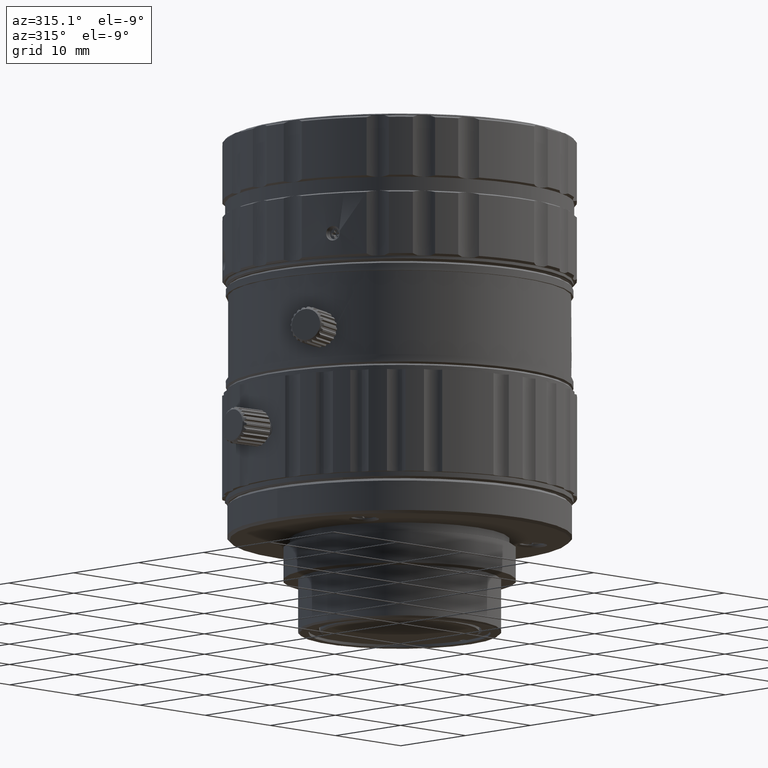
[diagram: clean part render]
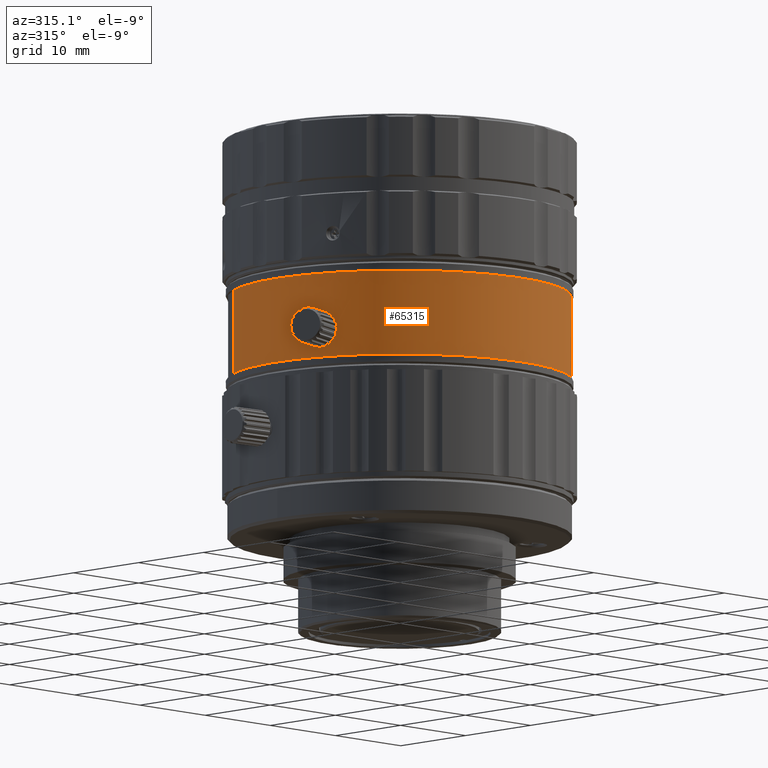
[diagram: same view with one face highlighted and labeled with its STEP entity id]
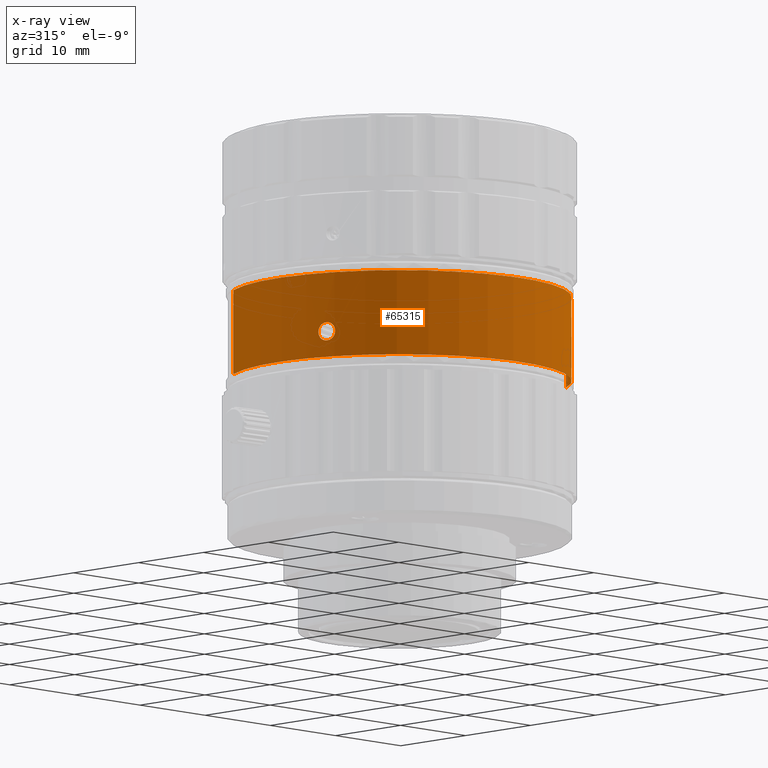
[diagram: x-ray of the same camera — body ghosted, the highlighted face saturated]
A machine part, auxiliary view. The second image highlights one B-rep face of the part: STEP entity #65315.
The next image is the same camera in x-ray: the body ghosted, the highlighted face saturated — about 0% of this face is hidden behind the body in this view.
In plain terms, the highlighted cylindrical surface (partial cylindrical patch) has radius 18.7 mm, axis along (0, 0, 1).
Its self-contained STEP definition (entity closure, byte-faithful):
#195 = VERTEX_POINT ( 'NONE', #25108 ) ;
#606 = CARTESIAN_POINT ( 'NONE',  ( -17.21618024574340211, -7.300005640051816513, 18.23421099973467108 ) ) ;
#628 = VERTEX_POINT ( 'NONE', #18775 ) ;
#872 = CARTESIAN_POINT ( 'NONE',  ( -17.20258043973591811, -7.332199515173570603, 18.50000656436566615 ) ) ;
#1294 = CARTESIAN_POINT ( 'NONE',  ( -17.28142690709346496, -7.144441216834127140, 17.88851125022605260 ) ) ;
#1579 = CARTESIAN_POINT ( 'NONE',  ( 13.94973725859865965, -12.45347931087509252, 19.33008300040383176 ) ) ;
#1937 = CARTESIAN_POINT ( 'NONE',  ( 13.90158552443185336, -12.50730711266013451, 19.27526118569986124 ) ) ;
#2150 = CARTESIAN_POINT ( 'NONE',  ( -17.89048265568584029, -5.442376417685388823, 18.55867254240463637 ) ) ;
#2277 = CARTESIAN_POINT ( 'NONE',  ( 13.78345472298498287, -12.63727895334794837, 17.91369211072118617 ) ) ;
#2360 = EDGE_CURVE ( 'NONE', #46749, #57878, #35588, .T. ) ;
#2576 = CARTESIAN_POINT ( 'NONE',  ( -17.33169939771410739, -7.021670955042416118, 19.24209169060820912 ) ) ;
#2952 = LINE ( 'NONE', #29784, #8270 ) ;
#2959 = CARTESIAN_POINT ( 'NONE',  ( 14.25302802408031333, -12.10593875614274140, 19.49967323390762175 ) ) ;
#3131 = EDGE_CURVE ( 'NONE', #11307, #19439, #58535, .T. ) ;
#3449 = CYLINDRICAL_SURFACE ( 'NONE', #4696, 18.69999999987999928 ) ;
#3508 = CARTESIAN_POINT ( 'NONE',  ( -17.83153099603091363, -5.632872432030306520, 19.11032323764769458 ) ) ;
#4294 = CARTESIAN_POINT ( 'NONE',  ( 14.69882443966237773, -11.55997259439689451, 17.68202999231140993 ) ) ;
#4531 = CARTESIAN_POINT ( 'NONE',  ( -17.65650320042198373, -6.160372549590998226, 17.51921500087838268 ) ) ;
#4696 = AXIS2_PLACEMENT_3D ( 'NONE', #24710, #67317, #19503 ) ;
#4941 = DIRECTION ( 'NONE',  ( 0.000000000000000000, 0.000000000000000000, -1.000000000000000000 ) ) ;
#4956 = CARTESIAN_POINT ( 'NONE',  ( 14.95089346455847412, -11.23210642667962844, 18.46406356350763645 ) ) ;
#5894 = B_SPLINE_CURVE_WITH_KNOTS ( 'NONE', 3,
 ( #30879, #62340, #53824, #52202, #16496, #6001, #57086, #41341, #45887, #46927, #25317, #67221, #21354, #61996, #25646, #56750, #36107 ),
 .UNSPECIFIED., .F., .F.,
 ( 4, 2, 2, 2, 1, 2, 2, 2, 4 ),
 ( 0.000000000000000000, 0.2499999999999829581, 0.3749999999999737432, 0.4374999999999683031, 0.4687499999999636957, 0.4843749999999628630, 0.4999999999999620304, 0.7499999999999810152, 1.000000000000000000 ),
 .UNSPECIFIED. ) ;
#6001 = CARTESIAN_POINT ( 'NONE',  ( 14.80067545063903367, -11.42969959159080595, 19.15262666019001969 ) ) ;
#6402 = VERTEX_POINT ( 'NONE', #8823 ) ;
#6536 = CARTESIAN_POINT ( 'NONE',  ( -17.38873514931079356, -6.878922574378370847, 17.63438794782238972 ) ) ;
#6809 = CARTESIAN_POINT ( 'NONE',  ( 13.65759335831792853, -12.77340265209540249, 18.51817221019041781 ) ) ;
#6876 = CARTESIAN_POINT ( 'NONE',  ( -17.34077700667790722, -6.999012187876029856, 17.72196069027455323 ) ) ;
#7114 = CARTESIAN_POINT ( 'NONE',  ( 14.58930526629772828, -11.69788433420257157, 17.58381923526305357 ) ) ;
#7155 = CARTESIAN_POINT ( 'NONE',  ( 13.71283992048618927, -12.71410054925594935, 18.89897795789893209 ) ) ;
#7485 = CARTESIAN_POINT ( 'NONE',  ( -17.26161803416259843, -7.193251090110858392, 19.01983714905340861 ) ) ;
#7516 = CARTESIAN_POINT ( 'NONE',  ( 13.82433625367956864, -12.59279441587124282, 19.16586012703539765 ) ) ;
#7728 = CARTESIAN_POINT ( 'NONE',  ( -17.88989359866500095, -5.444255887858869158, 18.58471377039095174 ) ) ;
#7814 = CARTESIAN_POINT ( 'NONE',  ( 14.57957170700743177, -11.71001185689683055, 17.57719476698483874 ) ) ;
#7849 = CARTESIAN_POINT ( 'NONE',  ( 14.00060256949767812, -12.39721806026792983, 17.61325777068859821 ) ) ;
#8024 = EDGE_CURVE ( 'NONE', #15169, #11307, #9319, .T. ) ;
#8062 = CARTESIAN_POINT ( 'NONE',  ( -17.80301050956076736, -5.721986680202819642, 19.21448378149023029 ) ) ;
#8157 = CARTESIAN_POINT ( 'NONE',  ( -17.34027388708133088, -7.000388286474245270, 19.26181014292524907 ) ) ;
#8270 = VECTOR ( 'NONE', #56340, 1000.000000000000000 ) ;
#8419 = CARTESIAN_POINT ( 'NONE',  ( -17.79655757271163807, -5.741997574537870186, 19.23482712435597364 ) ) ;
#8519 = CARTESIAN_POINT ( 'NONE',  ( -17.27451920729533796, -7.162160548372072277, 19.07307363181100968 ) ) ;
#8774 = CARTESIAN_POINT ( 'NONE',  ( -17.61282296824996507, -6.284183281311243263, 19.49902920717943999 ) ) ;
#8823 = CARTESIAN_POINT ( 'NONE',  ( 14.32410178647023891, -12.01872284573411953, 19.49565278202430108 ) ) ;
#8864 = CARTESIAN_POINT ( 'NONE',  ( -17.22146286821467243, -7.287756547011495556, 18.79014085798500489 ) ) ;
#9319 = B_SPLINE_CURVE_WITH_KNOTS ( 'NONE', 3,
 ( #43832, #27081, #49814, #53997, #17710, #54362, #65533, #33382, #6536, #32676, #6876, #11793, #48762, #1294, #65176, #22225, #48396, #22568, #38632, #606, #38974, #43484, #43149, #59945, #49451, #60284, #55038 ),
 .UNSPECIFIED., .F., .F.,
 ( 4, 2, 2, 2, 2, 2, 2, 2, 2, 2, 1, 2, 2, 4 ),
 ( 0.000000000000000000, 0.2173158677336297362, 0.2444803512003329571, 0.2716448346670360947, 0.3259738016004433692, 0.4346317354672624700, 0.4889607024006716873, 0.5432896693340810712, 0.6519476032008983957, 0.7062765701343076685, 0.7606055370677171634, 0.8149345040011264363, 0.8420989874678338483, 0.8692634709345413713 ),
 .UNSPECIFIED. ) ;
#9456 = CARTESIAN_POINT ( 'NONE',  ( -17.73623659744581005, -5.927359323427010551, 17.61268218970971233 ) ) ;
#9799 = CARTESIAN_POINT ( 'NONE',  ( -17.82672820336153663, -5.647337177201817049, 17.87219207963321921 ) ) ;
#10308 = EDGE_CURVE ( 'NONE', #19439, #54647, #15796, .T. ) ;
#11049 = ORIENTED_EDGE ( 'NONE', *, *, #27049, .F. ) ;
#11307 = VERTEX_POINT ( 'NONE', #872 ) ;
#11793 = CARTESIAN_POINT ( 'NONE',  ( -17.31083391931699822, -7.072740280059377938, 17.79829032725844229 ) ) ;
#12079 = CARTESIAN_POINT ( 'NONE',  ( 13.72721208571517160, -12.69868611711422624, 18.94539279878240023 ) ) ;
#12414 = CARTESIAN_POINT ( 'NONE',  ( 14.17251940514344888, -12.19978682101276846, 19.48376239922644615 ) ) ;
#12624 = CARTESIAN_POINT ( 'NONE',  ( -17.87567382617875467, -5.490451027454702704, 18.82586124641095893 ) ) ;
#12757 = CARTESIAN_POINT ( 'NONE',  ( 13.67846188756523240, -12.75112105289951892, 18.24911158568015423 ) ) ;
#12927 = FACE_BOUND ( 'NONE', #52270, .T. ) ;
#12982 = CARTESIAN_POINT ( 'NONE',  ( -17.76132639226500132, -5.849761673109686200, 19.32696480202264766 ) ) ;
#13434 = CARTESIAN_POINT ( 'NONE',  ( 13.80320942152259356, -12.61569397977743279, 17.87386151295515191 ) ) ;
#13643 = CARTESIAN_POINT ( 'NONE',  ( -17.78375116711476167, -5.781441813674049079, 19.27173674673117176 ) ) ;
#14104 = CARTESIAN_POINT ( 'NONE',  ( 14.93018196622602289, -11.25951288232038117, 18.23398154538917026 ) ) ;
#14679 = CARTESIAN_POINT ( 'NONE',  ( -17.88173891059589593, -5.471262272095454904, 18.24535604485443940 ) ) ;
#14848 = B_SPLINE_CURVE_WITH_KNOTS ( 'NONE', 3,
 ( #28985, #8774, #35247, #60774, #46033, #12982, #56218, #13643, #18193, #8419, #55869, #8062, #19207, #3508, #44691, #34887, #67378, #19566, #34224, #66016, #12624, #33868, #28656, #49962, #7728, #2150, #68768, #52008, #63508, #57920, #25127, #19909, #14679, #15693, #30689, #62150, #52343, #46734, #35911, #41846, #9799, #57239, #62823, #63179, #67734, #9456, #4531, #68069, #56901 ),
 .UNSPECIFIED., .F., .F.,
 ( 4, 2, 2, 2, 1, 2, 2, 2, 2, 2, 2, 2, 2, 1, 2, 2, 2, 2, 2, 2, 2, 1, 2, 2, 2, 4 ),
 ( 0.000000000000000000, 0.1250000000000131006, 0.1875000000000193456, 0.2187500000000232869, 0.2343750000000252576, 0.2421875000000246470, 0.2500000000000240363, 0.3125000000000060507, 0.3437499999999968359, 0.3593749999999922284, 0.3749999999999876765, 0.4374999999999727995, 0.4687499999999653055, 0.4843749999999630296, 0.4921874999999634737, 0.4999999999999639178, 0.5624999999999528155, 0.5937499999999471534, 0.6093749999999443778, 0.6249999999999416023, 0.6874999999999390488, 0.7187499999999393818, 0.7343749999999408251, 0.7499999999999422684, 0.8749999999999711342, 1.000000000000000000 ),
 .UNSPECIFIED. ) ;
#15169 = VERTEX_POINT ( 'NONE', #43570 ) ;
#15459 = CARTESIAN_POINT ( 'NONE',  ( 14.73190055390266018, -11.51780621423207762, 17.72209556279191744 ) ) ;
#15645 = ORIENTED_EDGE ( 'NONE', *, *, #40926, .T. ) ;
#15693 = CARTESIAN_POINT ( 'NONE',  ( -17.87745364388392844, -5.485202287556253609, 18.19579910986439941 ) ) ;
#15796 = B_SPLINE_CURVE_WITH_KNOTS ( 'NONE', 3,
 ( #55960, #8864, #66112, #7485, #8519, #50057, #40233, #18294, #2576, #8157, #44448, #29418, #24527, #39566, #60872, #34319, #29083 ),
 .UNSPECIFIED., .F., .F.,
 ( 4, 2, 2, 2, 1, 2, 2, 2, 4 ),
 ( 0.000000000000000000, 0.2499999999999764633, 0.3749999999999635847, 0.4374999999999575895, 0.4687499999999570899, 0.4843749999999557576, 0.4999999999999544809, 0.7499999999999772404, 1.000000000000000000 ),
 .UNSPECIFIED. ) ;
#16136 = CARTESIAN_POINT ( 'NONE',  ( 0.000000000000000000, 0.000000000000000000, 15.69999999999999929 ) ) ;
#16496 = CARTESIAN_POINT ( 'NONE',  ( 14.84022602739739938, -11.37860595068244329, 19.07212690718948522 ) ) ;
#17295 = CARTESIAN_POINT ( 'NONE',  ( 13.74214297906345728, -12.68259642925768738, 18.98961455003883003 ) ) ;
#17650 = CARTESIAN_POINT ( 'NONE',  ( 13.67320584157530661, -12.75676086482256899, 18.28203207466236435 ) ) ;
#17710 = CARTESIAN_POINT ( 'NONE',  ( -17.42533444972806222, -6.785723781515050845, 17.58374817238384935 ) ) ;
#17985 = CARTESIAN_POINT ( 'NONE',  ( 13.66096484717713722, -12.76986825998041830, 18.37904823358980622 ) ) ;
#18193 = CARTESIAN_POINT ( 'NONE',  ( -17.79025963367557495, -5.761462460288454324, 19.25383553399177572 ) ) ;
#18294 = CARTESIAN_POINT ( 'NONE',  ( -17.32370553395272950, -7.041449804942785384, 19.22200741129510249 ) ) ;
#18325 = CARTESIAN_POINT ( 'NONE',  ( 13.66731714942720544, -12.76285874724218239, 18.67387514849849950 ) ) ;
#18672 = CARTESIAN_POINT ( 'NONE',  ( 13.66373348465185167, -12.76673143323294113, 18.64051011808465930 ) ) ;
#18775 = CARTESIAN_POINT ( 'NONE',  ( -16.19467505066617008, 9.349999999938111372, 15.69999999999999929 ) ) ;
#18883 = CARTESIAN_POINT ( 'NONE',  ( -17.20632812267886180, -7.323428815042042572, 18.65946461506482024 ) ) ;
#19207 = CARTESIAN_POINT ( 'NONE',  ( -17.81892085992609509, -5.672450921200416829, 19.16175919383304205 ) ) ;
#19439 = VERTEX_POINT ( 'NONE', #63285 ) ;
#19503 = DIRECTION ( 'NONE',  ( -0.8660254037844969943, 0.4999999999998990252, 0.000000000000000000 ) ) ;
#19566 = CARTESIAN_POINT ( 'NONE',  ( -17.86160449135814687, -5.536778928577540171, 18.94108122614145273 ) ) ;
#19909 = CARTESIAN_POINT ( 'NONE',  ( -17.88402452317573221, -5.463796598092718781, 18.27810161522565124 ) ) ;
#20328 = DIRECTION ( 'NONE',  ( 0.8660254037844969943, -0.4999999999998990252, 0.000000000000000000 ) ) ;
#21208 = ORIENTED_EDGE ( 'NONE', *, *, #56294, .F. ) ;
#21354 = CARTESIAN_POINT ( 'NONE',  ( 14.65144929337680502, -11.62048673625431050, 19.36646276686014190 ) ) ;
#22225 = CARTESIAN_POINT ( 'NONE',  ( -17.25373904888560617, -7.211288725250026843, 17.99557213913774589 ) ) ;
#22568 = CARTESIAN_POINT ( 'NONE',  ( -17.22728474989646585, -7.274096188506995020, 18.14541094766948248 ) ) ;
#22863 = CARTESIAN_POINT ( 'NONE',  ( 13.86461171159582051, -12.54833760266186360, 19.22577050829847423 ) ) ;
#23547 = CARTESIAN_POINT ( 'NONE',  ( 13.84679574369458521, -12.56797005279415913, 17.80062125816906615 ) ) ;
#24219 = CARTESIAN_POINT ( 'NONE',  ( 13.88747748461931764, -12.52300735111462338, 19.25748427196615609 ) ) ;
#24261 = B_SPLINE_CURVE_WITH_KNOTS ( 'NONE', 3,
 ( #29596, #24699, #35513, #65947 ),
 .UNSPECIFIED., .F., .F.,
 ( 4, 4 ),
 ( 0.8691414569996045447, 1.000000000000000000 ),
 .UNSPECIFIED. ) ;
#24527 = CARTESIAN_POINT ( 'NONE',  ( -17.39094550934631656, -6.874288459321870270, 19.36907485991732258 ) ) ;
#24699 = CARTESIAN_POINT ( 'NONE',  ( 14.95121893154742132, -11.23172623288609628, 18.57978149439685467 ) ) ;
#24710 = CARTESIAN_POINT ( 'NONE',  ( 0.000000000000000000, 0.000000000000000000, -1.362500000000000044 ) ) ;
#25108 = CARTESIAN_POINT ( 'NONE',  ( -16.19467505066617008, 9.349999999938111372, 24.94999999999999929 ) ) ;
#25127 = CARTESIAN_POINT ( 'NONE',  ( -17.88935944156142099, -5.446308633285176448, 18.37481818233425557 ) ) ;
#25236 = B_SPLINE_CURVE_WITH_KNOTS ( 'NONE', 3,
 ( #65464, #2959, #12414, #55989, #38915, #1579, #59879, #1937, #24219, #44132, #22863, #65105, #7516, #28779, #39247, #17295, #12079, #38564, #7155, #60545, #54636, #18325, #18672, #50085, #44479, #33319, #6809, #55663, #28066, #17985, #17650, #12757, #29112, #34012, #55336, #49381, #60218, #49749, #2277, #13434, #39936, #33652, #23547, #54973, #7849, #28428, #65808, #44817 ),
 .UNSPECIFIED., .F., .F.,
 ( 4, 2, 2, 2, 1, 2, 2, 2, 1, 2, 2, 2, 2, 1, 2, 2, 2, 2, 2, 2, 2, 1, 2, 2, 2, 4 ),
 ( 0.000000000000000000, 0.1249999999999555356, 0.1874999999999333589, 0.2187499999999230060, 0.2343749999999173161, 0.2421874999999158451, 0.2499999999999144018, 0.3124999999999055200, 0.3437499999999011346, 0.3593749999998971933, 0.3749999999998932521, 0.4374999999998817612, 0.4687499999998760436, 0.4843749999998747113, 0.4921874999998755440, 0.4999999999998764322, 0.5624999999998868683, 0.5937499999998937517, 0.6093749999998971933, 0.6249999999999005240, 0.6874999999999137357, 0.7187499999999213962, 0.7343749999999242828, 0.7499999999999271694, 0.8749999999999635847, 1.000000000000000000 ),
 .UNSPECIFIED. ) ;
#25317 = CARTESIAN_POINT ( 'NONE',  ( 14.72503292751265214, -11.52664580823147134, 19.27214384460571495 ) ) ;
#25550 = CARTESIAN_POINT ( 'NONE',  ( 14.93953724406906680, -11.24707373911368613, 18.29499972211083758 ) ) ;
#25646 = CARTESIAN_POINT ( 'NONE',  ( 14.44877473738139706, -11.87131018373070823, 19.48735854437630621 ) ) ;
#25880 = CARTESIAN_POINT ( 'NONE',  ( 14.82803668963248711, -11.39386164439112115, 17.88834372317821320 ) ) ;
#26229 = CARTESIAN_POINT ( 'NONE',  ( 14.94977384927060626, -11.23357059190487739, 18.42903702022752910 ) ) ;
#26697 = EDGE_LOOP ( 'NONE', ( #33949, #41897, #56803, #56007 ) ) ;
#27049 = EDGE_CURVE ( 'NONE', #628, #195, #2952, .T. ) ;
#27081 = CARTESIAN_POINT ( 'NONE',  ( -17.52859458948584148, -6.515720673957077658, 17.49995763641592816 ) ) ;
#28066 = CARTESIAN_POINT ( 'NONE',  ( 13.65750647852148347, -12.77352443868452880, 18.44135420674161097 ) ) ;
#28241 = EDGE_LOOP ( 'NONE', ( #48734, #63393, #15645, #11049 ) ) ;
#28428 = CARTESIAN_POINT ( 'NONE',  ( 14.16285772670684828, -12.21130105222678708, 17.51932123263043906 ) ) ;
#28656 = CARTESIAN_POINT ( 'NONE',  ( -17.88684031468354618, -5.454078957331688571, 18.66934496812966415 ) ) ;
#28732 = VERTEX_POINT ( 'NONE', #33416 ) ;
#28779 = CARTESIAN_POINT ( 'NONE',  ( 13.79611775287484399, -12.62378877293397927, 19.11452699952238277 ) ) ;
#28985 = CARTESIAN_POINT ( 'NONE',  ( -17.57291161025439763, -6.390302094711049818, 19.49649699213905052 ) ) ;
#29078 = CARTESIAN_POINT ( 'NONE',  ( 14.60856518377918789, -11.67382418960554702, 17.59793133761997552 ) ) ;
#29083 = CARTESIAN_POINT ( 'NONE',  ( -17.57291161025439763, -6.390302094711049818, 19.49649699213905052 ) ) ;
#29112 = CARTESIAN_POINT ( 'NONE',  ( 13.68833225203968773, -12.74050378284441365, 18.19918938467710845 ) ) ;
#29418 = CARTESIAN_POINT ( 'NONE',  ( -17.34974170696701279, -6.976854923313479340, 19.28264869709783724 ) ) ;
#29596 = CARTESIAN_POINT ( 'NONE',  ( 14.95127239138058250, -11.23162415614595666, 18.49982052188108028 ) ) ;
#29784 = CARTESIAN_POINT ( 'NONE',  ( -16.19467505066617008, 9.349999999938111372, -1.362500000000000044 ) ) ;
#30093 = CARTESIAN_POINT ( 'NONE',  ( 14.79685063549611890, -11.43427798853938171, 17.82640329326855166 ) ) ;
#30689 = CARTESIAN_POINT ( 'NONE',  ( -17.87588248085492282, -5.490305675747790382, 18.17920776152222828 ) ) ;
#30879 = CARTESIAN_POINT ( 'NONE',  ( 14.92721324523762050, -11.25552298889276059, 18.73535018309759792 ) ) ;
#31100 = DIRECTION ( 'NONE',  ( -0.8660254037844969943, 0.4999999999998990252, 0.000000000000000000 ) ) ;
#31676 = CIRCLE ( 'NONE', #68559, 18.69999999987999928 ) ;
#32484 = ORIENTED_EDGE ( 'NONE', *, *, #67045, .F. ) ;
#32676 = CARTESIAN_POINT ( 'NONE',  ( -17.36076122620137596, -6.949268617896476208, 17.68188462823359330 ) ) ;
#33319 = CARTESIAN_POINT ( 'NONE',  ( 13.65791780208776274, -12.77304536800249402, 18.53607788276723767 ) ) ;
#33382 = CARTESIAN_POINT ( 'NONE',  ( -17.39773600773270346, -6.856160236506359418, 17.62064804123892969 ) ) ;
#33416 = CARTESIAN_POINT ( 'NONE',  ( 14.32667378956639936, -12.01910163234891904, 17.50420532525925310 ) ) ;
#33618 = CARTESIAN_POINT ( 'NONE',  ( 14.40712221196829468, -11.92229369597638389, 17.50020501561908759 ) ) ;
#33652 = CARTESIAN_POINT ( 'NONE',  ( 13.83971215553893508, -12.57573074305583027, 17.81179570441303639 ) ) ;
#33868 = CARTESIAN_POINT ( 'NONE',  ( -17.88110089631214805, -5.472711169126751152, 18.76589241150289666 ) ) ;
#33949 = ORIENTED_EDGE ( 'NONE', *, *, #8024, .F. ) ;
#34012 = CARTESIAN_POINT ( 'NONE',  ( 13.69195329328586830, -12.73660524705575092, 18.18245921096199069 ) ) ;
#34169 = FACE_BOUND ( 'NONE', #26697, .T. ) ;
#34224 = CARTESIAN_POINT ( 'NONE',  ( -17.86562340522105430, -5.523665624523456330, 18.91126739066037388 ) ) ;
#34228 = DIRECTION ( 'NONE',  ( 0.000000000000000000, 0.000000000000000000, 1.000000000000000000 ) ) ;
#34319 = CARTESIAN_POINT ( 'NONE',  ( -17.54337978067072612, -6.475197181132621438, 19.50066833016254009 ) ) ;
#34887 = CARTESIAN_POINT ( 'NONE',  ( -17.85273206498568754, -5.565445205138889406, 18.99948811917825608 ) ) ;
#35247 = CARTESIAN_POINT ( 'NONE',  ( -17.65358735086043396, -6.168143237672910395, 19.48240800954000917 ) ) ;
#35334 = CARTESIAN_POINT ( 'NONE',  ( 14.95118823487048942, -11.23172586055607525, 18.48322412144408489 ) ) ;
#35513 = CARTESIAN_POINT ( 'NONE',  ( 14.94553802335886417, -11.23927188538905142, 18.65937655974832765 ) ) ;
#35588 = LINE ( 'NONE', #60777, #41620 ) ;
#35704 = CARTESIAN_POINT ( 'NONE',  ( 16.19467505066616653, -9.349999999938113149, 24.94999999999999929 ) ) ;
#35911 = CARTESIAN_POINT ( 'NONE',  ( -17.85193605456452204, -5.567435305826869296, 17.99383789622703489 ) ) ;
#36107 = CARTESIAN_POINT ( 'NONE',  ( 14.32410178647023891, -12.01872284573411953, 19.49565278202430108 ) ) ;
#37709 = EDGE_CURVE ( 'NONE', #54647, #15169, #14848, .T. ) ;
#38564 = CARTESIAN_POINT ( 'NONE',  ( 13.71774846283874716, -12.70885019298621543, 18.91557363863497798 ) ) ;
#38632 = CARTESIAN_POINT ( 'NONE',  ( -17.22311921338795671, -7.283779587429881630, 18.17565548963767341 ) ) ;
#38915 = CARTESIAN_POINT ( 'NONE',  ( 14.00932962022590367, -12.38636529872400693, 19.38646482658869985 ) ) ;
#38964 = CARTESIAN_POINT ( 'NONE',  ( -17.57291161025439763, -6.390302094711049818, 19.49649699213905052 ) ) ;
#38974 = CARTESIAN_POINT ( 'NONE',  ( -17.21008609395010680, -7.314325187506250714, 18.29526377090239109 ) ) ;
#39247 = CARTESIAN_POINT ( 'NONE',  ( 13.75923004491716917, -12.66403271611325643, 19.03214625422576134 ) ) ;
#39566 = CARTESIAN_POINT ( 'NONE',  ( -17.43148734126486588, -6.770352610435851126, 19.42312807614934300 ) ) ;
#39936 = CARTESIAN_POINT ( 'NONE',  ( 13.82486750581101909, -12.59198737034847326, 17.83630120673478459 ) ) ;
#40233 = CARTESIAN_POINT ( 'NONE',  ( -17.30846431224320625, -7.079078591245725249, 19.18158421090587140 ) ) ;
#40918 = CARTESIAN_POINT ( 'NONE',  ( 14.83888637924831500, -11.37973318647984300, 17.91305041690547384 ) ) ;
#40926 = EDGE_CURVE ( 'NONE', #57878, #195, #31676, .T. ) ;
#41339 = CIRCLE ( 'NONE', #60324, 18.69999999987999928 ) ;
#41341 = CARTESIAN_POINT ( 'NONE',  ( 14.76137860964781012, -11.48017328804278314, 19.21972801677118170 ) ) ;
#41578 = CARTESIAN_POINT ( 'NONE',  ( 14.87212033008276002, -11.33641135832624869, 17.99542264933452529 ) ) ;
#41620 = VECTOR ( 'NONE', #34228, 1000.000000000000000 ) ;
#41846 = CARTESIAN_POINT ( 'NONE',  ( -17.83555158821693354, -5.619420466922991686, 17.91186163032438117 ) ) ;
#41897 = ORIENTED_EDGE ( 'NONE', *, *, #37709, .F. ) ;
#42770 = VERTEX_POINT ( 'NONE', #60291 ) ;
#43149 = CARTESIAN_POINT ( 'NONE',  ( -17.20404154643343375, -7.328673296688236860, 18.41201778304317571 ) ) ;
#43484 = CARTESIAN_POINT ( 'NONE',  ( -17.20609081596095535, -7.323795076822412042, 18.36105911759434051 ) ) ;
#43570 = CARTESIAN_POINT ( 'NONE',  ( -17.57256014270640065, -6.396636949474480360, 17.50408626825250025 ) ) ;
#43832 = CARTESIAN_POINT ( 'NONE',  ( -17.57256014270640065, -6.396636949474480360, 17.50408626825250025 ) ) ;
#44132 = CARTESIAN_POINT ( 'NONE',  ( 13.87370881036664727, -12.53826851898957884, 19.23860267206064378 ) ) ;
#44245 = EDGE_CURVE ( 'NONE', #50020, #42770, #24261, .T. ) ;
#44448 = CARTESIAN_POINT ( 'NONE',  ( -17.34612108175149459, -6.985860592658005963, 19.27485342042654892 ) ) ;
#44479 = CARTESIAN_POINT ( 'NONE',  ( 13.65864270113081957, -12.77225211339426281, 18.56277003215239318 ) ) ;
#44691 = CARTESIAN_POINT ( 'NONE',  ( -17.84776605190508292, -5.581326565927660077, 19.02785878574306722 ) ) ;
#44817 = CARTESIAN_POINT ( 'NONE',  ( 14.32667378956639936, -12.01910163234891904, 17.50420532525925310 ) ) ;
#45379 = CARTESIAN_POINT ( 'NONE',  ( -17.20258043973591811, -7.332199515173570603, 18.50000656436566615 ) ) ;
#45887 = CARTESIAN_POINT ( 'NONE',  ( 14.74844963274394338, -11.49673151866384657, 19.23964049797059772 ) ) ;
#46033 = CARTESIAN_POINT ( 'NONE',  ( -17.73314372419067553, -5.934568746195666655, 19.38382312961426024 ) ) ;
#46133 = CARTESIAN_POINT ( 'NONE',  ( 14.91960345423895262, -11.27362961328468849, 18.17547762084541318 ) ) ;
#46734 = CARTESIAN_POINT ( 'NONE',  ( -17.86117157796830668, -5.537922661713817973, 18.05201149347990253 ) ) ;
#46749 = VERTEX_POINT ( 'NONE', #68709 ) ;
#46826 = CARTESIAN_POINT ( 'NONE',  ( 14.94894857443264158, -11.23465416798442540, 18.41177488291684483 ) ) ;
#46927 = CARTESIAN_POINT ( 'NONE',  ( 14.73453329078333240, -11.51451438798342508, 19.25920151677567205 ) ) ;
#48396 = CARTESIAN_POINT ( 'NONE',  ( -17.24182197071320033, -7.239800145334369219, 18.05406161926998720 ) ) ;
#48734 = ORIENTED_EDGE ( 'NONE', *, *, #63709, .T. ) ;
#48762 = CARTESIAN_POINT ( 'NONE',  ( -17.30086814116067728, -7.097143835735170825, 17.82642856843787982 ) ) ;
#49381 = CARTESIAN_POINT ( 'NONE',  ( 13.70467298405546153, -12.72289314368009983, 18.13037407639992793 ) ) ;
#49451 = CARTESIAN_POINT ( 'NONE',  ( -17.20280879032278065, -7.331629146492165461, 18.46427748585614026 ) ) ;
#49558 = ORIENTED_EDGE ( 'NONE', *, *, #44245, .F. ) ;
#49749 = CARTESIAN_POINT ( 'NONE',  ( 13.74666452578507325, -12.67741523345189414, 17.99599259431487397 ) ) ;
#49814 = CARTESIAN_POINT ( 'NONE',  ( -17.48191488538721217, -6.639727369213662911, 17.52129768984648450 ) ) ;
#49962 = CARTESIAN_POINT ( 'NONE',  ( -17.88835220249645275, -5.449200970124226551, 18.63607290997360977 ) ) ;
#50020 = VERTEX_POINT ( 'NONE', #67929 ) ;
#50057 = CARTESIAN_POINT ( 'NONE',  ( -17.29930005073941146, -7.101589219116898555, 19.15430280312707367 ) ) ;
#50085 = CARTESIAN_POINT ( 'NONE',  ( 13.66005648428652464, -12.77071602879091827, 18.58893689668444793 ) ) ;
#50114 = B_SPLINE_CURVE_WITH_KNOTS ( 'NONE', 3,
 ( #60181, #33618, #54937, #7814, #7114, #29078, #62579, #56993, #52101, #4294, #15459, #58008, #30093, #25880, #40918, #41578, #61891, #68506, #46133, #14104, #25550, #63269, #46826, #26229, #4956, #35334, #57685 ),
 .UNSPECIFIED., .F., .F.,
 ( 4, 2, 2, 2, 2, 2, 2, 2, 2, 2, 1, 2, 2, 4 ),
 ( 0.000000000000000000, 0.2172853642499054660, 0.2444460347811431289, 0.2716067053123807362, 0.3259280463748540635, 0.4345707284998022724, 0.4888920695622768764, 0.5432134106247514804, 0.6518560927497006885, 0.7061774338121753480, 0.7604987748746498966, 0.8148201159371246671, 0.8419807864683646059, 0.8691414569996045447 ),
 .UNSPECIFIED. ) ;
#50985 = CARTESIAN_POINT ( 'NONE',  ( -17.21120089494785077, -7.299547928036129285, 18.73534067560354899 ) ) ;
#51251 = FACE_OUTER_BOUND ( 'NONE', #28241, .T. ) ;
#52008 = CARTESIAN_POINT ( 'NONE',  ( -17.89090294540407200, -5.441064463985748390, 18.51433629916478907 ) ) ;
#52101 = CARTESIAN_POINT ( 'NONE',  ( 14.65184081636245139, -11.61943479951835378, 17.63450688573315617 ) ) ;
#52202 = CARTESIAN_POINT ( 'NONE',  ( 14.86050162129238750, -11.35214583870433103, 19.01934753601842587 ) ) ;
#52270 = EDGE_LOOP ( 'NONE', ( #53599, #32484, #21208, #49558 ) ) ;
#52343 = CARTESIAN_POINT ( 'NONE',  ( -17.87038133014191033, -5.508136346346966583, 18.12773309491609908 ) ) ;
#52438 = DIRECTION ( 'NONE',  ( 0.000000000000000000, 0.000000000000000000, 1.000000000000000000 ) ) ;
#52756 = CARTESIAN_POINT ( 'NONE',  ( 0.000000000000000000, 0.000000000000000000, 24.94999999999999929 ) ) ;
#53599 = ORIENTED_EDGE ( 'NONE', *, *, #54216, .F. ) ;
#53824 = CARTESIAN_POINT ( 'NONE',  ( 14.90791073759339547, -11.28979629842065258, 18.87251925262741281 ) ) ;
#53997 = CARTESIAN_POINT ( 'NONE',  ( -17.43097189620504039, -6.771226652545353275, 17.57711206191029873 ) ) ;
#54216 = EDGE_CURVE ( 'NONE', #28732, #50020, #50114, .T. ) ;
#54362 = CARTESIAN_POINT ( 'NONE',  ( -17.41412434507408591, -6.814442062517947818, 17.59788461088867351 ) ) ;
#54636 = CARTESIAN_POINT ( 'NONE',  ( 13.68091610659871016, -12.74821187439208536, 18.77055635783766974 ) ) ;
#54647 = VERTEX_POINT ( 'NONE', #38964 ) ;
#54937 = CARTESIAN_POINT ( 'NONE',  ( 14.49118181840269948, -11.81985452074372134, 17.52148147047986626 ) ) ;
#54973 = CARTESIAN_POINT ( 'NONE',  ( 13.92204839736842814, -12.48548850126470100, 17.68799488242003903 ) ) ;
#55038 = CARTESIAN_POINT ( 'NONE',  ( -17.20258043973591811, -7.332199515173570603, 18.50000656436566615 ) ) ;
#55336 = CARTESIAN_POINT ( 'NONE',  ( 13.69989220516259643, -12.72804976850315306, 18.14888509866736044 ) ) ;
#55663 = CARTESIAN_POINT ( 'NONE',  ( 13.65751044509452150, -12.77349624969796693, 18.50744673898037362 ) ) ;
#55869 = CARTESIAN_POINT ( 'NONE',  ( -17.80070622584076290, -5.729144854019200039, 19.22190981656011388 ) ) ;
#55960 = CARTESIAN_POINT ( 'NONE',  ( -17.21120089494785077, -7.299547928036129285, 18.73534067560354899 ) ) ;
#55989 = CARTESIAN_POINT ( 'NONE',  ( 14.05025422069926755, -12.33987467966671403, 19.41621720276839724 ) ) ;
#56007 = ORIENTED_EDGE ( 'NONE', *, *, #3131, .F. ) ;
#56218 = CARTESIAN_POINT ( 'NONE',  ( -17.77049078408310123, -5.821974987700204274, 19.30605913970535781 ) ) ;
#56294 = EDGE_CURVE ( 'NONE', #42770, #6402, #5894, .T. ) ;
#56340 = DIRECTION ( 'NONE',  ( 0.000000000000000000, 0.000000000000000000, 1.000000000000000000 ) ) ;
#56750 = CARTESIAN_POINT ( 'NONE',  ( 14.38445148057735423, -11.94929797994588050, 19.49987157125005410 ) ) ;
#56803 = ORIENTED_EDGE ( 'NONE', *, *, #10308, .F. ) ;
#56901 = CARTESIAN_POINT ( 'NONE',  ( -17.57256014270640065, -6.396636949474480360, 17.50408626825250025 ) ) ;
#56993 = CARTESIAN_POINT ( 'NONE',  ( 14.63660143439011208, -11.63864521646046590, 17.62075110879784035 ) ) ;
#57086 = CARTESIAN_POINT ( 'NONE',  ( 14.78597070796704038, -11.44862943104731556, 19.17965871866470096 ) ) ;
#57239 = CARTESIAN_POINT ( 'NONE',  ( -17.81702294694430933, -5.677945993483398901, 17.83478905046283458 ) ) ;
#57685 = CARTESIAN_POINT ( 'NONE',  ( 14.95127239138058250, -11.23162415614595666, 18.49982052188108028 ) ) ;
#57878 = VERTEX_POINT ( 'NONE', #35704 ) ;
#57920 = CARTESIAN_POINT ( 'NONE',  ( -17.89088637191693110, -5.441196763560840033, 18.43722808916924549 ) ) ;
#58008 = CARTESIAN_POINT ( 'NONE',  ( 14.78072409906478057, -11.45507938924231084, 17.79831674289901855 ) ) ;
#58535 = B_SPLINE_CURVE_WITH_KNOTS ( 'NONE', 3,
 ( #45379, #66714, #18883, #50985 ),
 .UNSPECIFIED., .F., .F.,
 ( 4, 4 ),
 ( 0.8692634709345413713, 1.000000000000000000 ),
 .UNSPECIFIED. ) ;
#59879 = CARTESIAN_POINT ( 'NONE',  ( 13.93017689502705814, -12.47540839140267011, 19.30933766945535979 ) ) ;
#59945 = CARTESIAN_POINT ( 'NONE',  ( -17.20351635497827658, -7.329928585461965795, 18.42927183291844884 ) ) ;
#60181 = CARTESIAN_POINT ( 'NONE',  ( 14.32667378956639936, -12.01910163234891904, 17.50420532525925310 ) ) ;
#60218 = CARTESIAN_POINT ( 'NONE',  ( 13.72577256983685068, -12.70011742622674689, 18.05438517863983705 ) ) ;
#60284 = CARTESIAN_POINT ( 'NONE',  ( -17.20262661989586306, -7.332074855716045114, 18.48339719333824149 ) ) ;
#60291 = CARTESIAN_POINT ( 'NONE',  ( 14.92721324523762050, -11.25552298889276059, 18.73535018309759792 ) ) ;
#60324 = AXIS2_PLACEMENT_3D ( 'NONE', #16136, #52438, #20328 ) ;
#60545 = CARTESIAN_POINT ( 'NONE',  ( 13.69376921941510794, -12.73442032658047296, 18.83041936090982915 ) ) ;
#60774 = CARTESIAN_POINT ( 'NONE',  ( -17.71344510369118552, -5.993008771317872352, 19.41388712725940024 ) ) ;
#60777 = CARTESIAN_POINT ( 'NONE',  ( 16.19467505066616653, -9.349999999938113149, -1.362500000000000044 ) ) ;
#60872 = CARTESIAN_POINT ( 'NONE',  ( -17.50769241758577976, -6.570840290671715600, 19.48877996752651498 ) ) ;
#61891 = CARTESIAN_POINT ( 'NONE',  ( 14.89085927793274244, -11.31182707219700134, 18.05390191871365246 ) ) ;
#61996 = CARTESIAN_POINT ( 'NONE',  ( 14.58224945813486073, -11.70693328192197669, 19.42079948685463719 ) ) ;
#62150 = CARTESIAN_POINT ( 'NONE',  ( -17.87243974373532396, -5.501470566421242658, 18.14594281517885221 ) ) ;
#62340 = CARTESIAN_POINT ( 'NONE',  ( 14.92202431026792553, -11.27046464434913808, 18.79075830290235061 ) ) ;
#62579 = CARTESIAN_POINT ( 'NONE',  ( 14.61466679264848167, -11.66617786471092622, 17.60275837263099064 ) ) ;
#62823 = CARTESIAN_POINT ( 'NONE',  ( -17.81036492786783043, -5.698925806669627114, 17.81038732743520825 ) ) ;
#63179 = CARTESIAN_POINT ( 'NONE',  ( -17.80718721099567148, -5.708931192308375202, 17.79926694229255446 ) ) ;
#63269 = CARTESIAN_POINT ( 'NONE',  ( 14.94574571967015331, -11.23887199146287941, 18.36079913305772138 ) ) ;
#63285 = CARTESIAN_POINT ( 'NONE',  ( -17.21120089494785077, -7.299547928036129285, 18.73534067560354899 ) ) ;
#63393 = ORIENTED_EDGE ( 'NONE', *, *, #2360, .T. ) ;
#63508 = CARTESIAN_POINT ( 'NONE',  ( -17.89093124916596267, -5.440984015335748047, 18.50377912213091847 ) ) ;
#63709 = EDGE_CURVE ( 'NONE', #628, #46749, #41339, .T. ) ;
#65105 = CARTESIAN_POINT ( 'NONE',  ( 13.85955402332768749, -12.55392679362271124, 19.21841127494365509 ) ) ;
#65176 = CARTESIAN_POINT ( 'NONE',  ( -17.27463293264171895, -7.160861398082719376, 17.91317962314305490 ) ) ;
#65315 = ADVANCED_FACE ( 'NONE', ( #12927, #34169, #51251 ), #3449, .T. ) ;
#65464 = CARTESIAN_POINT ( 'NONE',  ( 14.32410178647023891, -12.01872284573411953, 19.49565278202430108 ) ) ;
#65533 = CARTESIAN_POINT ( 'NONE',  ( -17.41057854219555878, -6.823484681472364421, 17.60268448537766517 ) ) ;
#65808 = CARTESIAN_POINT ( 'NONE',  ( 14.24644311732202517, -12.11378503138877072, 17.49996264451075234 ) ) ;
#65947 = CARTESIAN_POINT ( 'NONE',  ( 14.92721324523762050, -11.25552298889276059, 18.73535018309759792 ) ) ;
#66016 = CARTESIAN_POINT ( 'NONE',  ( -17.86767991766054564, -5.516906811144423273, 18.89475092406053136 ) ) ;
#66112 = CARTESIAN_POINT ( 'NONE',  ( -17.23110632196015857, -7.266000515398284065, 18.87202186678605642 ) ) ;
#66714 = CARTESIAN_POINT ( 'NONE',  ( -17.20264035798457414, -7.332107138612408370, 18.57994423029258968 ) ) ;
#67045 = EDGE_CURVE ( 'NONE', #6402, #28732, #25236, .T. ) ;
#67221 = CARTESIAN_POINT ( 'NONE',  ( 14.71918095263433379, -11.53411259045380532, 19.27983258823975632 ) ) ;
#67317 = DIRECTION ( 'NONE',  ( 0.000000000000000000, 0.000000000000000000, 1.000000000000000000 ) ) ;
#67378 = CARTESIAN_POINT ( 'NONE',  ( -17.85947463751155695, -5.543687601995116232, 18.95582166217402076 ) ) ;
#67734 = CARTESIAN_POINT ( 'NONE',  ( -17.77336518963816303, -5.815339496982863565, 17.68707251098623345 ) ) ;
#67929 = CARTESIAN_POINT ( 'NONE',  ( 14.95127239138058250, -11.23162415614595666, 18.49982052188108028 ) ) ;
#68069 = CARTESIAN_POINT ( 'NONE',  ( -17.61395291136866348, -6.281202794114424393, 17.49997866597360741 ) ) ;
#68506 = CARTESIAN_POINT ( 'NONE',  ( 14.91329910905229994, -11.28208001097704027, 18.14523929719955220 ) ) ;
#68559 = AXIS2_PLACEMENT_3D ( 'NONE', #52756, #4941, #31100 ) ;
#68709 = CARTESIAN_POINT ( 'NONE',  ( 16.19467505066616653, -9.349999999938113149, 15.69999999999999929 ) ) ;
#68768 = CARTESIAN_POINT ( 'NONE',  ( -17.89077583250902137, -5.441456640674569023, 18.53213369529060373 ) ) ;